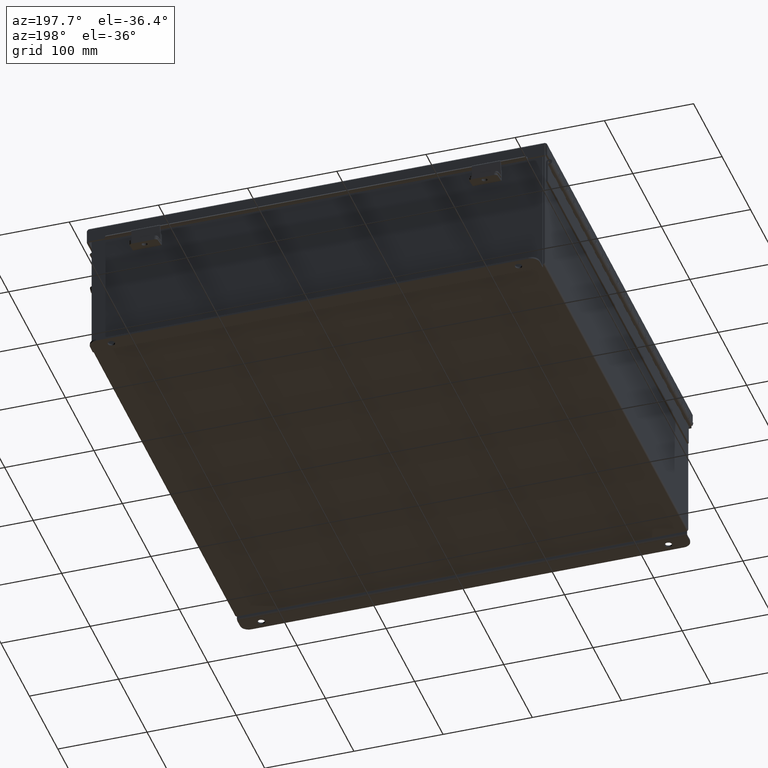
[diagram: clean part render]
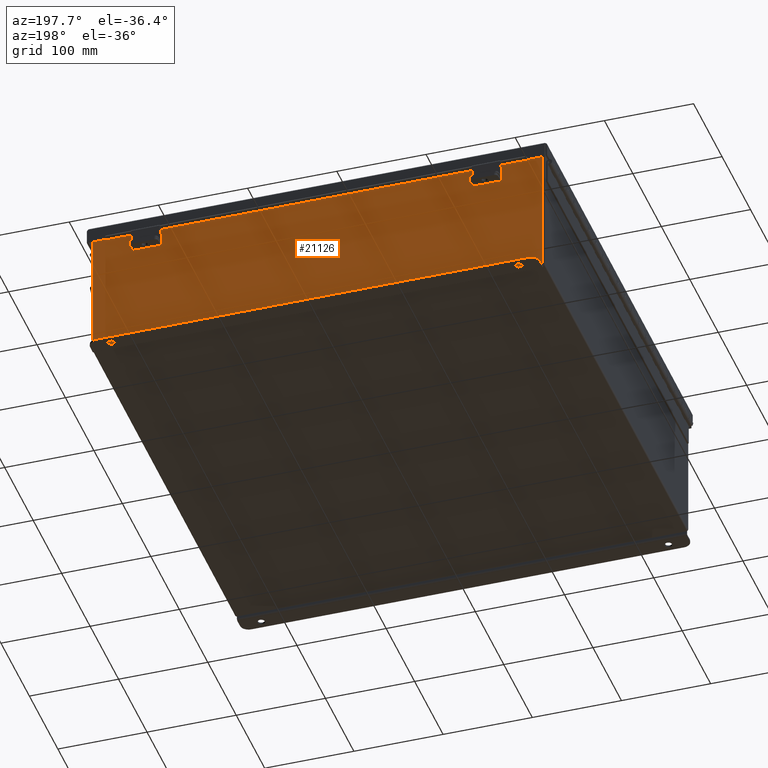
[diagram: same view with one face highlighted and labeled with its STEP entity id]
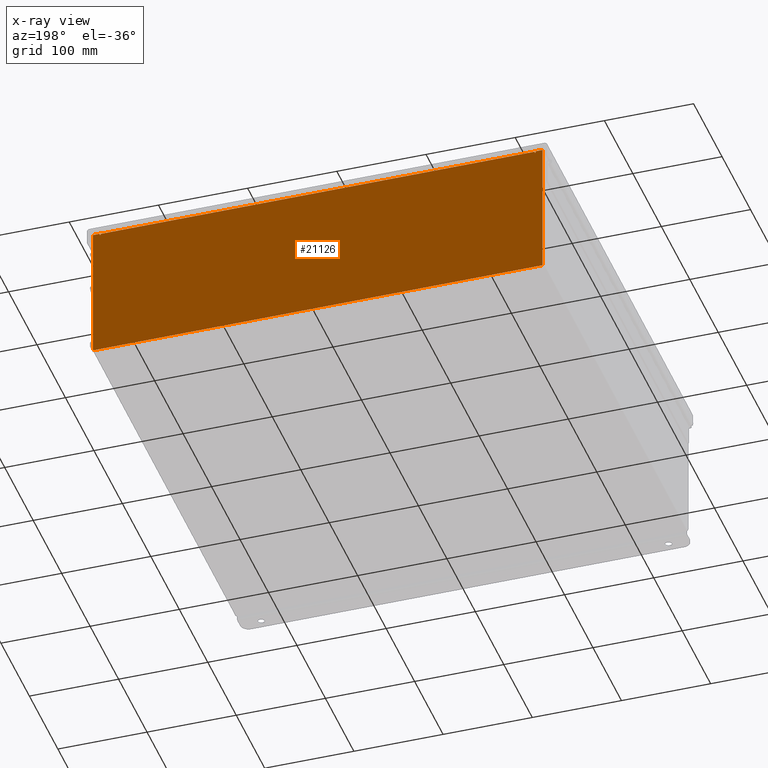
[diagram: x-ray of the same camera — body ghosted, the highlighted face saturated]
A machine part, auxiliary view. The second image highlights one B-rep face of the part: STEP entity #21126.
The next image is the same camera in x-ray: the body ghosted, the highlighted face saturated — about 0% of this face is hidden behind the body in this view.
In plain terms, the highlighted planar face has unit normal (0, -1, 0).
Its self-contained STEP definition (entity closure, byte-faithful):
#201 = VERTEX_POINT ( 'NONE', #6456 ) ;
#326 = EDGE_CURVE ( 'NONE', #19923, #10434, #11561, .T. ) ;
#674 = PLANE ( 'NONE',  #15081 ) ;
#2173 = EDGE_CURVE ( 'NONE', #4785, #16517, #5444, .T. ) ;
#2187 = CARTESIAN_POINT ( 'NONE',  ( -9.925299999999996500, 0.0000000000000000000, -3.099299999999999900 ) ) ;
#2324 = EDGE_CURVE ( 'NONE', #4975, #6081, #16020, .T. ) ;
#2410 = CARTESIAN_POINT ( 'NONE',  ( 0.0000000000000000000, 0.0000000000000000000, 0.0000000000000000000 ) ) ;
#2527 = LINE ( 'NONE', #11291, #15803 ) ;
#2583 = VERTEX_POINT ( 'NONE', #11150 ) ;
#3258 = EDGE_CURVE ( 'NONE', #5258, #2583, #18159, .T. ) ;
#3384 = ORIENTED_EDGE ( 'NONE', *, *, #8934, .F. ) ;
#3569 = ORIENTED_EDGE ( 'NONE', *, *, #17515, .T. ) ;
#3669 = ORIENTED_EDGE ( 'NONE', *, *, #11041, .F. ) ;
#4082 = LINE ( 'NONE', #21259, #12768 ) ;
#4129 = DIRECTION ( 'NONE',  ( 0.0000000000000000000, -0.0000000000000000000, -1.000000000000000000 ) ) ;
#4185 = EDGE_CURVE ( 'NONE', #16517, #22374, #5907, .T. ) ;
#4235 = DIRECTION ( 'NONE',  ( 1.000000000000000000, 0.0000000000000000000, 0.0000000000000000000 ) ) ;
#4317 = EDGE_CURVE ( 'NONE', #19632, #10434, #15945, .T. ) ;
#4538 = VECTOR ( 'NONE', #9749, 39.37007874015748100 ) ;
#4785 = VERTEX_POINT ( 'NONE', #8399 ) ;
#4850 = VECTOR ( 'NONE', #4235, 39.37007874015748100 ) ;
#4975 = VERTEX_POINT ( 'NONE', #7772 ) ;
#5109 = EDGE_CURVE ( 'NONE', #4785, #19923, #2527, .T. ) ;
#5258 = VERTEX_POINT ( 'NONE', #16758 ) ;
#5320 = CARTESIAN_POINT ( 'NONE',  ( -9.619649999999998300, 0.0000000000000000000, 0.0000000000000000000 ) ) ;
#5444 = LINE ( 'NONE', #19041, #10039 ) ;
#5757 = CARTESIAN_POINT ( 'NONE',  ( -9.925299999999998200, 0.0000000000000000000, 2.925299999999999600 ) ) ;
#5772 = DIRECTION ( 'NONE',  ( 0.0000000000000000000, 0.0000000000000000000, 1.000000000000000000 ) ) ;
#5907 = CIRCLE ( 'NONE', #14644, 0.01867500000000003900 ) ;
#6081 = VERTEX_POINT ( 'NONE', #16446 ) ;
#6456 = CARTESIAN_POINT ( 'NONE',  ( -9.582299999999998300, 0.0000000000000000000, 2.874949999999998300 ) ) ;
#6706 = VECTOR ( 'NONE', #7564, 39.37007874015748100 ) ;
#7564 = DIRECTION ( 'NONE',  ( 1.000000000000000000, -0.0000000000000000000, -0.0000000000000000000 ) ) ;
#7772 = CARTESIAN_POINT ( 'NONE',  ( -9.619649999999998300, 0.0000000000000000000, 2.874949999999998300 ) ) ;
#7976 = CARTESIAN_POINT ( 'NONE',  ( -9.925299999999998200, 0.0000000000000000000, 2.925299999999999600 ) ) ;
#8399 = CARTESIAN_POINT ( 'NONE',  ( 9.619650000000001800, 0.0000000000000000000, 2.925299999999999600 ) ) ;
#8445 = ORIENTED_EDGE ( 'NONE', *, *, #5109, .T. ) ;
#8641 = CARTESIAN_POINT ( 'NONE',  ( -9.600974999999998300, 0.0000000000000000000, 2.874949999999998300 ) ) ;
#8745 = ORIENTED_EDGE ( 'NONE', *, *, #3258, .T. ) ;
#8934 = EDGE_CURVE ( 'NONE', #5258, #201, #15499, .T. ) ;
#9391 = ORIENTED_EDGE ( 'NONE', *, *, #326, .T. ) ;
#9613 = EDGE_CURVE ( 'NONE', #19685, #6081, #4082, .T. ) ;
#9749 = DIRECTION ( 'NONE',  ( -0.0000000000000000000, -0.0000000000000000000, 1.000000000000000000 ) ) ;
#10039 = VECTOR ( 'NONE', #21969, 39.37007874015748100 ) ;
#10041 = CARTESIAN_POINT ( 'NONE',  ( 9.925300000000001800, 0.0000000000000000000, -3.099299999999999900 ) ) ;
#10415 = DIRECTION ( 'NONE',  ( 0.0000000000000000000, 0.0000000000000000000, -1.000000000000000000 ) ) ;
#10434 = VERTEX_POINT ( 'NONE', #10041 ) ;
#10677 = ORIENTED_EDGE ( 'NONE', *, *, #4317, .F. ) ;
#10766 = ORIENTED_EDGE ( 'NONE', *, *, #9613, .T. ) ;
#10880 = VECTOR ( 'NONE', #19313, 39.37007874015748100 ) ;
#10997 = DIRECTION ( 'NONE',  ( 0.0000000000000000000, 0.0000000000000000000, -1.000000000000000000 ) ) ;
#11041 = EDGE_CURVE ( 'NONE', #201, #4975, #17040, .T. ) ;
#11150 = CARTESIAN_POINT ( 'NONE',  ( 9.582300000000001800, 0.0000000000000000000, 2.912299999999998300 ) ) ;
#11291 = CARTESIAN_POINT ( 'NONE',  ( -9.925299999999998200, 0.0000000000000000000, 2.925299999999999600 ) ) ;
#11331 = CARTESIAN_POINT ( 'NONE',  ( -9.582299999999998300, 4.370956789862821100E-015, 2.912299999999998300 ) ) ;
#11440 = ORIENTED_EDGE ( 'NONE', *, *, #18699, .F. ) ;
#11561 = LINE ( 'NONE', #20115, #19748 ) ;
#11666 = CARTESIAN_POINT ( 'NONE',  ( 9.582300000000000000, 0.0000000000000000000, 2.874949999999998300 ) ) ;
#11953 = VECTOR ( 'NONE', #5772, 39.37007874015748100 ) ;
#12118 = ORIENTED_EDGE ( 'NONE', *, *, #4185, .F. ) ;
#12343 = CARTESIAN_POINT ( 'NONE',  ( -9.582299999999998300, 0.0000000000000000000, 0.0000000000000000000 ) ) ;
#12768 = VECTOR ( 'NONE', #15865, 39.37007874015748100 ) ;
#12934 = CARTESIAN_POINT ( 'NONE',  ( -9.925299999999998200, 0.0000000000000000000, -3.099299999999999900 ) ) ;
#13233 = AXIS2_PLACEMENT_3D ( 'NONE', #8641, #20833, #10415 ) ;
#14523 = DIRECTION ( 'NONE',  ( 0.0000000000000000000, -1.000000000000000000, 0.0000000000000000000 ) ) ;
#14644 = AXIS2_PLACEMENT_3D ( 'NONE', #21166, #16968, #10997 ) ;
#15081 = AXIS2_PLACEMENT_3D ( 'NONE', #2410, #14523, #4129 ) ;
#15244 = ORIENTED_EDGE ( 'NONE', *, *, #2324, .F. ) ;
#15499 = LINE ( 'NONE', #12343, #10880 ) ;
#15803 = VECTOR ( 'NONE', #19220, 39.37007874015748100 ) ;
#15865 = DIRECTION ( 'NONE',  ( 1.000000000000000000, 0.0000000000000000000, 0.0000000000000000000 ) ) ;
#15945 = LINE ( 'NONE', #12934, #6706 ) ;
#16020 = LINE ( 'NONE', #5320, #11953 ) ;
#16446 = CARTESIAN_POINT ( 'NONE',  ( -9.619649999999998300, 0.0000000000000000000, 2.925299999999999600 ) ) ;
#16517 = VERTEX_POINT ( 'NONE', #21279 ) ;
#16758 = CARTESIAN_POINT ( 'NONE',  ( -9.582299999999998300, 4.370956789862821100E-015, 2.912299999999998300 ) ) ;
#16956 = DIRECTION ( 'NONE',  ( 0.0000000000000000000, 0.0000000000000000000, 1.000000000000000000 ) ) ;
#16968 = DIRECTION ( 'NONE',  ( -0.0000000000000000000, 1.000000000000000000, -0.0000000000000000000 ) ) ;
#17040 = CIRCLE ( 'NONE', #13233, 0.01867500000000003900 ) ;
#17515 = EDGE_CURVE ( 'NONE', #19632, #19685, #18389, .T. ) ;
#18159 = LINE ( 'NONE', #11331, #4850 ) ;
#18369 = VECTOR ( 'NONE', #16956, 39.37007874015748100 ) ;
#18389 = LINE ( 'NONE', #7976, #4538 ) ;
#18588 = CARTESIAN_POINT ( 'NONE',  ( 9.925300000000001800, 0.0000000000000000000, 2.925299999999999600 ) ) ;
#18699 = EDGE_CURVE ( 'NONE', #22374, #2583, #18922, .T. ) ;
#18922 = LINE ( 'NONE', #22119, #18369 ) ;
#19041 = CARTESIAN_POINT ( 'NONE',  ( 9.619650000000001800, 0.0000000000000000000, 0.0000000000000000000 ) ) ;
#19220 = DIRECTION ( 'NONE',  ( 1.000000000000000000, 0.0000000000000000000, 0.0000000000000000000 ) ) ;
#19313 = DIRECTION ( 'NONE',  ( 0.0000000000000000000, 0.0000000000000000000, -1.000000000000000000 ) ) ;
#19632 = VERTEX_POINT ( 'NONE', #2187 ) ;
#19685 = VERTEX_POINT ( 'NONE', #5757 ) ;
#19748 = VECTOR ( 'NONE', #22318, 39.37007874015748100 ) ;
#19923 = VERTEX_POINT ( 'NONE', #18588 ) ;
#20115 = CARTESIAN_POINT ( 'NONE',  ( 9.925300000000001800, 0.0000000000000000000, 2.925299999999999600 ) ) ;
#20632 = EDGE_LOOP ( 'NONE', ( #15244, #3669, #3384, #8745, #11440, #12118, #20678, #8445, #9391, #10677, #3569, #10766 ) ) ;
#20678 = ORIENTED_EDGE ( 'NONE', *, *, #2173, .F. ) ;
#20833 = DIRECTION ( 'NONE',  ( -0.0000000000000000000, 1.000000000000000000, -0.0000000000000000000 ) ) ;
#21126 = ADVANCED_FACE ( 'NONE', ( #21527 ), #674, .F. ) ;
#21166 = CARTESIAN_POINT ( 'NONE',  ( 9.600975000000000000, 0.0000000000000000000, 2.874949999999998300 ) ) ;
#21259 = CARTESIAN_POINT ( 'NONE',  ( -9.925299999999998200, 0.0000000000000000000, 2.925299999999999600 ) ) ;
#21279 = CARTESIAN_POINT ( 'NONE',  ( 9.619650000000001800, 0.0000000000000000000, 2.874949999999998300 ) ) ;
#21527 = FACE_OUTER_BOUND ( 'NONE', #20632, .T. ) ;
#21969 = DIRECTION ( 'NONE',  ( 0.0000000000000000000, 0.0000000000000000000, -1.000000000000000000 ) ) ;
#22119 = CARTESIAN_POINT ( 'NONE',  ( 9.582300000000001800, 0.0000000000000000000, 0.0000000000000000000 ) ) ;
#22318 = DIRECTION ( 'NONE',  ( 0.0000000000000000000, 0.0000000000000000000, -1.000000000000000000 ) ) ;
#22374 = VERTEX_POINT ( 'NONE', #11666 ) ;